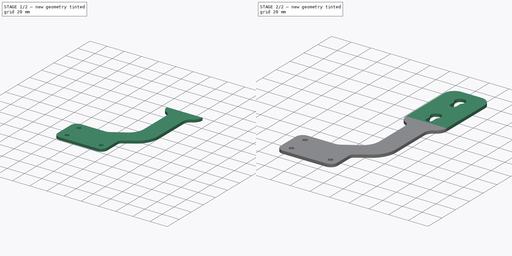
[diagram: build sequence overview — one tinted view per stage of 2, left to right]
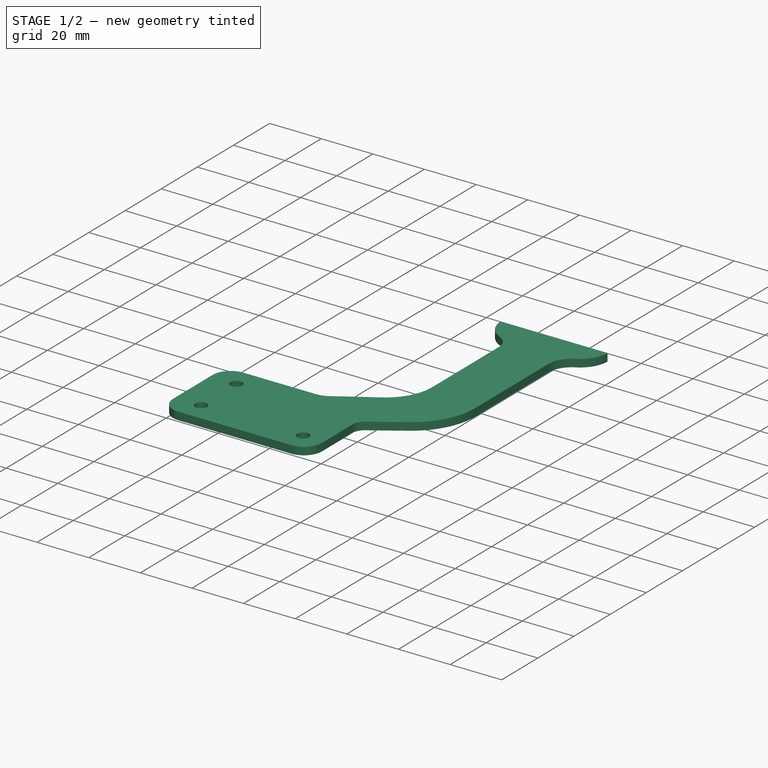
[diagram: stage 1 of 2 — iso view after this stage's code; geometry added in this stage tinted green]
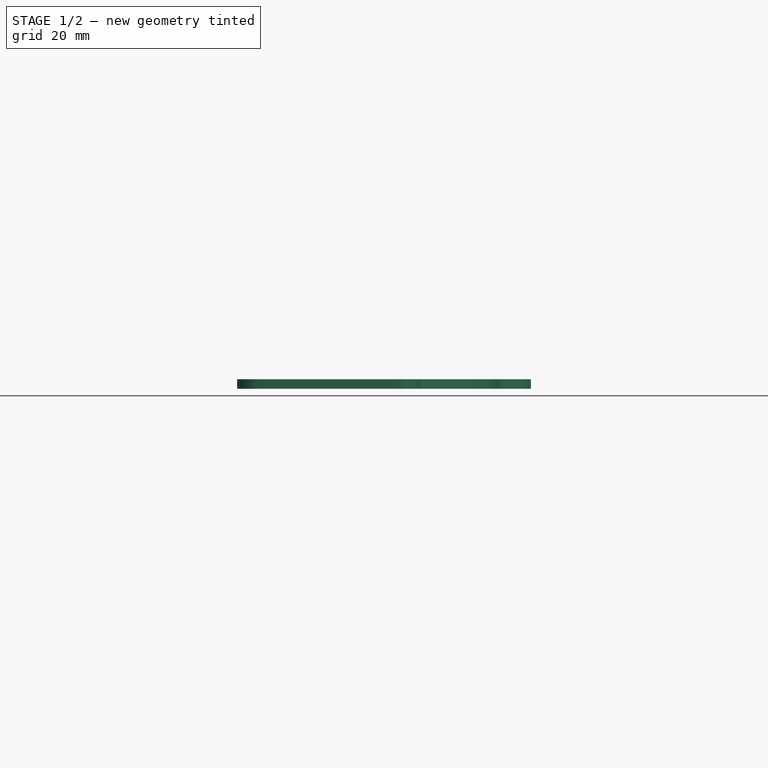
[diagram: stage 1 of 2 — front view after this stage's code; geometry added in this stage tinted green]
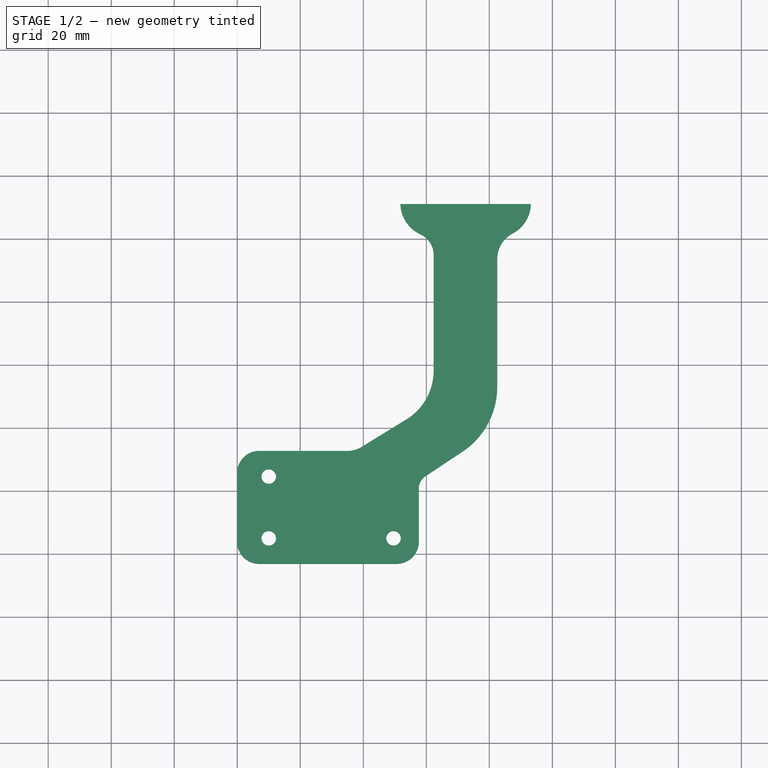
[diagram: stage 1 of 2 — top view after this stage's code; geometry added in this stage tinted green]
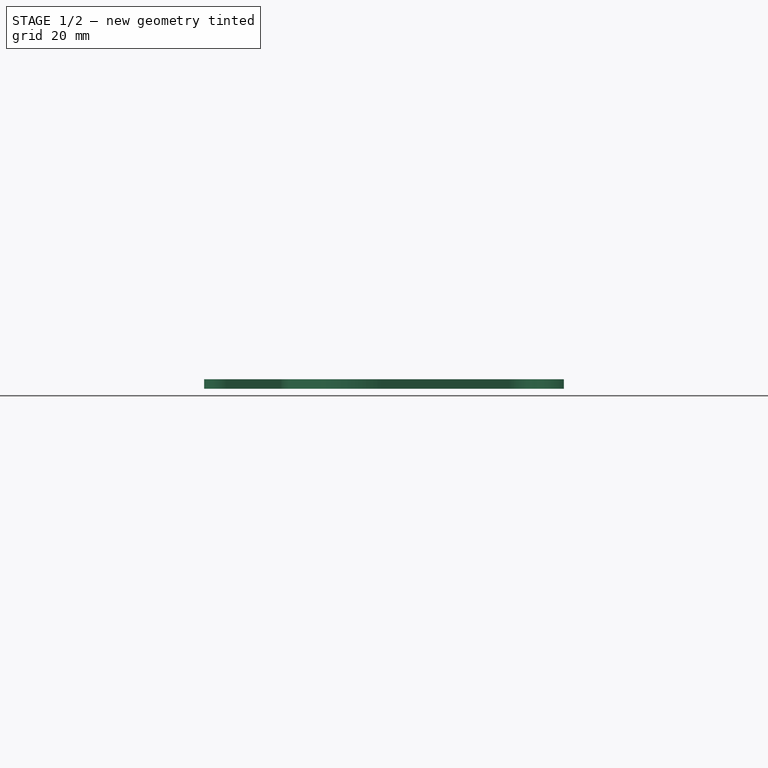
[diagram: stage 1 of 2 — right view after this stage's code; geometry added in this stage tinted green]
FCSTD DOCUMENT  (FreeCAD 0.22R37841 (Git))
Label: ScreenHolder
License: All rights reserved
LicenseURL: http://en.wikipedia.org/wiki/All_rights_reserved
objects: Sketcher::SketchObject×6, PartDesign::Pad×4, PartDesign::Body×2
note: 16 computed .brp shape members not serialized (recipe doc carries the construction recipe); baked Part::Feature solids carry a one-line shape summary decoded from their .brp

FEATURE [Sketcher::SketchObject] Sketch002
  AttachmentOffset = pos=(-50,-50,0) rot=(0,0,1;0rad)
  AttachmentSupport = -> [XY_Plane]
  FullyConstrained = false
  MapMode = 5
  Placement = pos=(-50,-50,0) rot=(0,0,1;0rad)
  sketch-geometry (13):
    g0: Circle CenterX=0 CenterY=-25.4 CenterZ=0 NormalX=0 NormalY=0 NormalZ=1 AngleXU=0 Radius=2.3
    g1: Circle CenterX=39.6 CenterY=-45 CenterZ=0 NormalX=0 NormalY=0 NormalZ=1 AngleXU=0 Radius=2.3
    g2: Circle CenterX=0 CenterY=-45 CenterZ=0 NormalX=0 NormalY=0 NormalZ=1 AngleXU=0 Radius=2.3
    g3: LineSegment StartX=-10.0542 StartY=-24.2496 StartZ=0 EndX=-10.0542 EndY=-46.0993 EndZ=0
    g4: LineSegment StartX=-3.05425 StartY=-53.0993 StartZ=0 EndX=40.6269 EndY=-53.0993 EndZ=0
    g5: LineSegment StartX=47.6269 StartY=-46.0993 StartZ=0 EndX=47.6269 EndY=-24.2496 EndZ=0
    g6: LineSegment StartX=40.6269 StartY=-17.2496 StartZ=0 EndX=-3.05425 EndY=-17.2496 EndZ=0
    g7: ArcOfCircle CenterX=-3.05424 CenterY=-24.2496 CenterZ=0 NormalX=0 NormalY=0 NormalZ=1 AngleXU=0 Radius=7 StartAngle=1.5708 EndAngle=3.14159
    g8: ArcOfCircle CenterX=-3.05424 CenterY=-46.0993 CenterZ=0 NormalX=0 NormalY=0 NormalZ=1 AngleXU=0 Radius=7 StartAngle=3.14159 EndAngle=4.71239
    g9: ArcOfCircle CenterX=40.6269 CenterY=-46.0993 CenterZ=0 NormalX=0 NormalY=0 NormalZ=1 AngleXU=0 Radius=7 StartAngle=4.71239 EndAngle=6.28319
    g10: ArcOfCircle CenterX=40.6269 CenterY=-24.2496 CenterZ=0 NormalX=0 NormalY=0 NormalZ=1 AngleXU=0 Radius=7 StartAngle=0 EndAngle=1.5708
    g11: GeomPoint X=-10.0542 Y=-17.2496 Z=0
    g12: GeomPoint X=47.6269 Y=-53.0993 Z=0
  constraints (29):
    c: Diameter(g0) = 4.6
    c: Diameter(g1) = 4.6
    c: Diameter(g2) = 4.6
    c: Vertical(g0,g2)
    c: Distance(g0,g2) = 19.6
    c: Distance(g2,g1) = 39.6
    c: Distance(g-1,g2) = 45
    c: Vertical(g2,g-1)
    c: Horizontal(g2,g1)
    c: Tangent(g3,g7) = -1.5708
    c: Tangent(g3,g8) = -1.5708
    c: Tangent(g4,g8) = -1.5708
    c: Tangent(g4,g9) = -1.5708
    c: Tangent(g5,g9) = -1.5708
    c: Tangent(g5,g10) = -1.5708
    c: Tangent(g6,g10) = -1.5708
    c: Tangent(g6,g7) = -1.5708
    c: Vertical(g3)
    c: Vertical(g5)
    c: Horizontal(g4)
    c: Horizontal(g6)
    c: Equal(g7,g8)
    c: Equal(g8,g9)
    c: Equal(g9,g10)
    c: PointOnObject(g11,g3)
    c: PointOnObject(g11,g6)
    c: PointOnObject(g12,g4)
    c: PointOnObject(g12,g5)
    c: Radius(g8) = 7
FEATURE [PartDesign::Pad] Pad001
  Direction = (0,0,1)
  Length = 3
  Length2 = 10
  Profile = -> Sketch002
  ReferenceAxis = -> Sketch002 [N_Axis]
  Suppressed = false
  Type = 0
FEATURE [Sketcher::SketchObject] Sketch003
  FullyConstrained = false
  Placement = pos=(12,13,3) rot=(0,0,1;0rad)
  sketch-geometry (28):
    g0: LineSegment StartX=-3.15 StartY=3.14702 StartZ=0 EndX=-3.15 EndY=8.81702 EndZ=0
    g1: LineSegment StartX=0 StartY=0 StartZ=0 EndX=0 EndY=3.15 EndZ=0
    g2: ArcOfCircle CenterX=0 CenterY=3.15 CenterZ=0 NormalX=0 NormalY=0 NormalZ=1 AngleXU=0 Radius=3.15 StartAngle=3.14254 EndAngle=6.28224
    g3: LineSegment StartX=0 StartY=17.7 StartZ=0 EndX=0 EndY=12.7 EndZ=0
    g4: ArcOfCircle CenterX=0 CenterY=12.7 CenterZ=0 NormalX=0 NormalY=0 NormalZ=1 AngleXU=0 Radius=5 StartAngle=5.39394 EndAngle=10.314
    g5: LineSegment StartX=3.15 StartY=8.81702 StartZ=0 EndX=3.15 EndY=3.14702 EndZ=0
    g6: LineSegment StartX=0 StartY=0 StartZ=0 EndX=0 EndY=35 EndZ=0
    g7: LineSegment StartX=0 StartY=35 StartZ=0 EndX=0 EndY=52.7 EndZ=0
    g8: LineSegment StartX=-3.15792 StartY=38.172 StartZ=0 EndX=-3.15792 EndY=43.842 EndZ=0
    g9: LineSegment StartX=0 StartY=35 StartZ=0 EndX=-0.00791605 EndY=38.172 EndZ=0
    g10: ArcOfCircle CenterX=-0.00791605 CenterY=38.172 CenterZ=0 NormalX=0 NormalY=0 NormalZ=1 AngleXU=0 Radius=3.15 StartAngle=3.14159 EndAngle=6.28319
    g11: LineSegment StartX=0 StartY=47.7 StartZ=0 EndX=-0.00791605 EndY=47.725 EndZ=0
    g12: ArcOfCircle CenterX=-0.00791605 CenterY=47.725 CenterZ=0 NormalX=0 NormalY=0 NormalZ=1 AngleXU=0 Radius=5 StartAngle=5.39394 EndAngle=10.314
    g13: LineSegment StartX=3.14208 StartY=43.842 StartZ=0 EndX=3.14208 EndY=38.172 EndZ=0
    g14: LineSegment StartX=-9.56113 StartY=-12.4546 StartZ=0 EndX=10.4854 EndY=-12.4546 EndZ=0
    g15: LineSegment StartX=21.1385 StartY=-1.80158 StartZ=0 EndX=21.1385 EndY=53.0091 EndZ=0
    g16: LineSegment StartX=10.4854 StartY=63.6621 StartZ=0 EndX=-9.56113 EndY=63.6621 EndZ=0
    g17: LineSegment StartX=-20.2142 StartY=53.0091 StartZ=0 EndX=-20.2142 EndY=-1.80158 EndZ=0
    g18: ArcOfCircle CenterX=-9.56113 CenterY=-1.80158 CenterZ=0 NormalX=0 NormalY=0 NormalZ=1 AngleXU=0 Radius=10.653 StartAngle=3.14159 EndAngle=4.71239
    g19: ArcOfCircle CenterX=10.4854 CenterY=-1.80158 CenterZ=0 NormalX=0 NormalY=0 NormalZ=1 AngleXU=0 Radius=10.653 StartAngle=4.71239 EndAngle=6.28319
    g20: ArcOfCircle CenterX=10.4854 CenterY=53.0091 CenterZ=0 NormalX=0 NormalY=0 NormalZ=1 AngleXU=0 Radius=10.653 StartAngle=1e-16 EndAngle=1.5708
    g21: ArcOfCircle CenterX=-9.56113 CenterY=53.0091 CenterZ=0 NormalX=0 NormalY=0 NormalZ=1 AngleXU=0 Radius=10.653 StartAngle=1.5708 EndAngle=3.14159
    g22: GeomPoint X=-20.2142 Y=-12.4546 Z=0
    g23: GeomPoint X=21.1385 Y=63.6621 Z=0
    g24: LineSegment StartX=-3.15 StartY=8.81702 StartZ=0 EndX=3.15 EndY=8.81702 EndZ=0
    g25: LineSegment StartX=-3.15 StartY=3.14702 StartZ=0 EndX=3.15 EndY=3.14702 EndZ=0
    g26: LineSegment StartX=-3.15792 StartY=43.842 StartZ=0 EndX=3.14208 EndY=43.842 EndZ=0
    g27: LineSegment StartX=-3.15792 StartY=38.172 StartZ=0 EndX=3.14208 EndY=38.172 EndZ=0
  constraints (65):
    c: Vertical(g0)
    c: Distance(g1) = 3.15
    c: Coincident(g1,g-1)
    c: PointOnObject(g1,g-2)
    c: Coincident(g2,g1)
    c: Distance(g3) = 5
    c: PointOnObject(g3,g-2)
    c: Diameter(g4) = 10
    c: Coincident(g4,g3)
    c: Coincident(g5,g2) = 1.5708
    c: Coincident(g0,g2)
    c: Coincident(g0,g4)
    c: Coincident(g5,g4)
    c: Distance(g6) = 35
    c: Coincident(g6,g1)
    c: PointOnObject(g6,g-2)
    c: Distance(g7) = 17.7
    c: Coincident(g7,g6)
    c: Vertical(g7)
    c: Vertical(g8)
    c: Coincident(g10,g9)
    c: Diameter(g12) = 10
    c: Coincident(g12,g11)
    c: Coincident(g13,g10)
    c: Coincident(g8,g10)
    c: Coincident(g8,g12)
    c: Coincident(g13,g12)
    c: Tangent(g14,g18) = -1.5708
    c: Tangent(g14,g19) = -1.5708
    c: Tangent(g15,g19) = -1.5708
    c: Tangent(g15,g20) = -1.5708
    c: Tangent(g16,g20) = -1.5708
    c: Tangent(g16,g21) = -1.5708
    c: Tangent(g17,g21) = -1.5708
    c: Tangent(g17,g18) = -1.5708
    c: Horizontal(g14)
    c: Horizontal(g16)
    c: Vertical(g15)
    c: Vertical(g17)
    c: Equal(g18,g19)
    c: Equal(g19,g20)
    c: Equal(g20,g21)
    c: PointOnObject(g22,g14)
    c: PointOnObject(g22,g17)
    c: PointOnObject(g23,g15)
    c: PointOnObject(g23,g16)
    c: Distance(g0) = 5.67
    c: Distance(g8) = 5.67
    c: Diameter(g2) = 6.3
    c: Equal(g5,g0)
    c: Coincident(g24,g0)
    c: Coincident(g24,g4)
    c: Horizontal(g24)
    c: Coincident(g25,g0)
    c: Coincident(g25,g2)
    c: Coincident(g26,g8)
    c: Coincident(g26,g12)
    c: Horizontal(g26)
    c: Coincident(g27,g8)
    c: Coincident(g27,g10)
    c: Horizontal(g27)
    c: Equal(g13,g8)
    c: Diameter(g10) = 6.3
    c: Coincident(g9,g6)
    c: Equal(g26,g27)
FEATURE [Sketcher::SketchObject] Sketch
  AttachmentSupport = -> [Pad001]
  FullyConstrained = false
  MapMode = 5
  Placement = pos=(0,0,3) rot=(0,0,1;0rad)
  sketch-geometry (23):
    g0: ArcOfCircle CenterX=2.72698 CenterY=11.4741 CenterZ=0 NormalX=0 NormalY=0 NormalZ=1 AngleXU=0 Radius=10.9726 StartAngle=3.17623 EndAngle=4.2799
    g1: ArcOfCircle CenterX=22.3295 CenterY=11.3737 CenterZ=0 NormalX=0 NormalY=0 NormalZ=1 AngleXU=0 Radius=10.8686 StartAngle=5.19521 EndAngle=6.25746
    g2: LineSegment StartX=2.31792 StartY=-5.03727 StartZ=0 EndX=2.31792 EndY=-41.7953 EndZ=0
    g3: LineSegment StartX=-6.32829 StartY=-57.2579 StartZ=0 EndX=-20.5893 EndY=-66.0227 EndZ=0
    g4: LineSegment StartX=22.5163 StartY=-46.8472 StartZ=0 EndX=22.5163 EndY=-6.28601 EndZ=0
    g5: ArcOfCircle CenterX=-15.8316 CenterY=-41.7953 CenterZ=0 NormalX=0 NormalY=0 NormalZ=1 AngleXU=0 Radius=18.1495 StartAngle=5.26347 EndAngle=6.28319
    g6: GeomPoint X=2.31792 Y=-51.9439 Z=0
    g7: ArcOfCircle CenterX=-4.89533 CenterY=-5.03727 CenterZ=0 NormalX=0 NormalY=0 NormalZ=1 AngleXU=0 Radius=7.21324 StartAngle=0 EndAngle=1.1383
    g8: ArcOfCircle CenterX=31.5867 CenterY=-6.28601 CenterZ=0 NormalX=0 NormalY=0 NormalZ=1 AngleXU=0 Radius=9.07034 StartAngle=2.05361 EndAngle=3.14159
    g9: LineSegment StartX=-8.23901 StartY=11.0941 StartZ=0 EndX=33.1945 EndY=11.0941 EndZ=0
    g10: LineSegment StartX=-0.26974 StartY=-75.2692 StartZ=0 EndX=11.395 EndY=-67.5471 EndZ=0
    g11: ArcOfCircle CenterX=-2.30851 CenterY=-46.8472 CenterZ=0 NormalX=0 NormalY=0 NormalZ=1 AngleXU=0 Radius=24.8248 StartAngle=5.29716 EndAngle=6.28319
    g12: GeomPoint X=22.5163 Y=-60.1847 Z=0
    g13: LineSegment StartX=-27.1997 StartY=-95.492 StartZ=0 EndX=-4.49973 EndY=-86.6561 EndZ=0
    g14: LineSegment StartX=-2.42732 StartY=-83.6255 StartZ=0 EndX=-2.42732 EndY=-79.285 EndZ=0
    g15: LineSegment StartX=-24.9319 StartY=-67.2505 StartZ=0 EndX=-30.2639 EndY=-67.2505 EndZ=0
    g16: LineSegment StartX=-30.2639 StartY=-67.2505 StartZ=0 EndX=-27.1997 EndY=-95.492 EndZ=0
    g17: ArcOfCircle CenterX=-24.9319 CenterY=-58.957 CenterZ=0 NormalX=0 NormalY=0 NormalZ=1 AngleXU=0 Radius=8.29354 StartAngle=4.71239 EndAngle=5.26347
    g18: GeomPoint X=-22.5871 Y=-67.2505 Z=0
    g19: ArcOfCircle CenterX=2.38878 CenterY=-79.285 CenterZ=0 NormalX=0 NormalY=0 NormalZ=1 AngleXU=0 Radius=4.8161 StartAngle=2.15557 EndAngle=3.14159
    g20: GeomPoint X=-2.42732 Y=-76.6975 Z=0
    g21: ArcOfCircle CenterX=-5.67938 CenterY=-83.6255 CenterZ=0 NormalX=0 NormalY=0 NormalZ=1 AngleXU=0 Radius=3.25206 StartAngle=5.08359 EndAngle=6.28319
    g22: GeomPoint X=-2.42732 Y=-85.8494 Z=0
  constraints (33):
    c: Vertical(g2)
    c: Vertical(g4)
    c: PointOnObject(g6,g2)
    c: PointOnObject(g6,g3)
    c: Tangent(g2,g5) = 1.5708
    c: Tangent(g3,g5) = 1.5708
    c: Tangent(g0,g7) = 1.5708
    c: Tangent(g2,g7) = 1.5708
    c: Tangent(g1,g8) = 1.5708
    c: Tangent(g4,g8) = 1.5708
    c: Coincident(g9,g0)
    c: Coincident(g9,g1)
    c: Horizontal(g9)
    c: PointOnObject(g12,g4)
    c: PointOnObject(g12,g10)
    c: Tangent(g4,g11) = -1.5708
    c: Tangent(g10,g11) = -1.5708
    c: Vertical(g14)
    c: Horizontal(g15)
    c: Coincident(g16,g15)
    c: Coincident(g16,g13)
    c: PointOnObject(g18,g3)
    c: PointOnObject(g18,g15)
    c: Tangent(g3,g17) = 1.5708
    c: Tangent(g15,g17) = 1.5708
    c: PointOnObject(g20,g10)
    c: PointOnObject(g20,g14)
    c: Tangent(g10,g19) = 1.5708
    c: Tangent(g14,g19) = 1.5708
    c: PointOnObject(g22,g14)
    c: PointOnObject(g22,g13)
    c: Tangent(g14,g21) = -1.5708
    c: Tangent(g13,g21) = -1.5708
FEATURE [PartDesign::Pad] Pad002
  BaseFeature = -> Pad001
  Direction = (0,0,1)
  Length = 3
  Length2 = 10
  Profile = -> Sketch
  ReferenceAxis = -> Sketch [N_Axis]
  Reversed = true
  Suppressed = false
  Type = 0
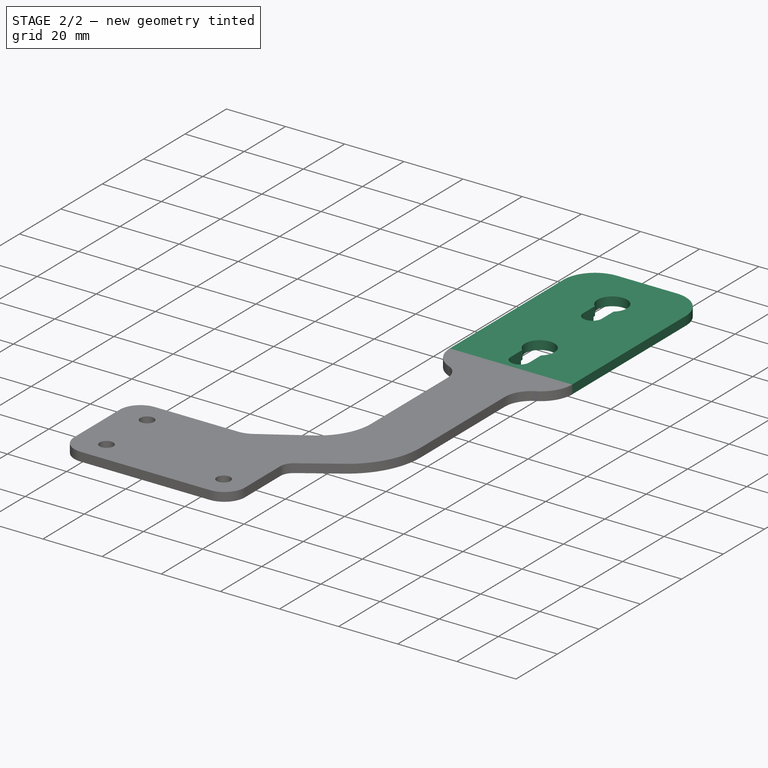
[diagram: stage 2 of 2 — iso view after this stage's code; geometry added in this stage tinted green]
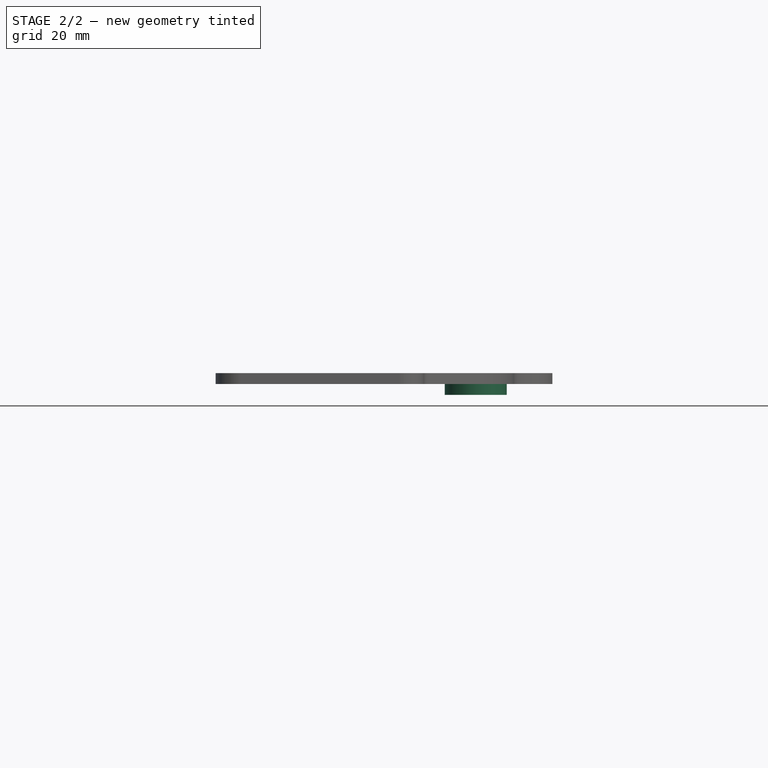
[diagram: stage 2 of 2 — front view after this stage's code; geometry added in this stage tinted green]
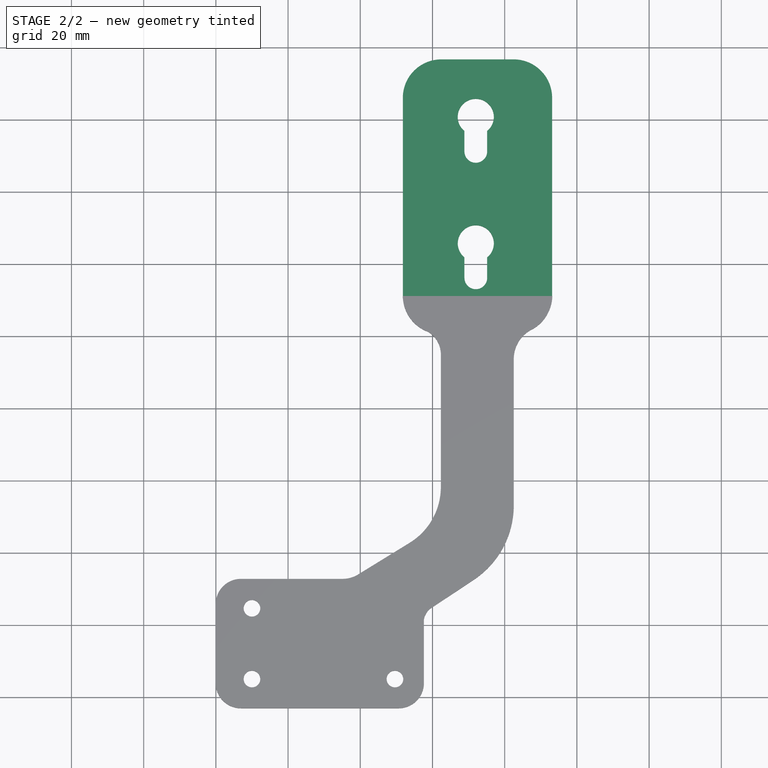
[diagram: stage 2 of 2 — top view after this stage's code; geometry added in this stage tinted green]
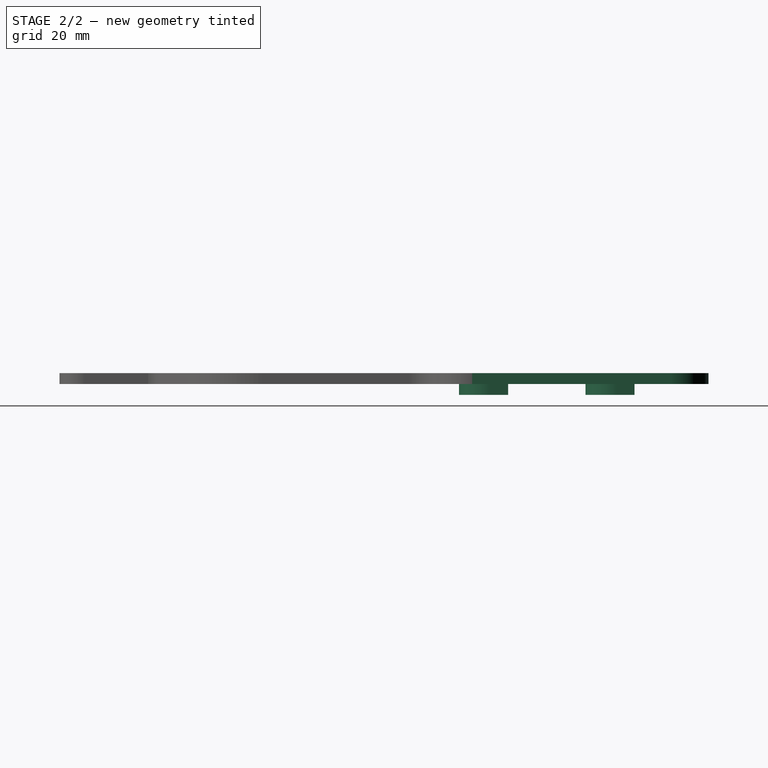
[diagram: stage 2 of 2 — right view after this stage's code; geometry added in this stage tinted green]
FEATURE [PartDesign::Pad] Pad
  BaseFeature = -> Pad002
  Direction = (0,0,1)
  Length = 3
  Length2 = 10
  Profile = -> Sketch003
  ReferenceAxis = -> Sketch003 [N_Axis]
  Reversed = true
  Suppressed = false
  Type = 0
FEATURE [Sketcher::SketchObject] Sketch006
  AttachmentSupport = -> [Pad]
  ExternalGeometry = -> [Pad]
  FullyConstrained = false
  MapMode = 5
  Placement = pos=(0,0,4e-16) rot=(1,0,0;3.14159rad)
  sketch-geometry (16):
    g0: ArcOfCircle CenterX=12 CenterY=-16.15 CenterZ=0 NormalX=0 NormalY=0 NormalZ=1 AngleXU=0 Radius=3.15 StartAngle=0 EndAngle=3.14159
    g1: LineSegment StartX=8.85 StartY=-16.15 StartZ=0 EndX=8.85 EndY=-21.15 EndZ=0
    g2: LineSegment StartX=15.15 StartY=-16.15 StartZ=0 EndX=15.15 EndY=-21.147 EndZ=0
    g3: ArcOfCircle CenterX=11.9921 CenterY=-51.172 CenterZ=0 NormalX=0 NormalY=0 NormalZ=1 AngleXU=0 Radius=3.15 StartAngle=0 EndAngle=3.14159
    g4: LineSegment StartX=15.1421 StartY=-51.172 StartZ=0 EndX=15.1421 EndY=-56.172 EndZ=0
    g5: LineSegment StartX=8.84208 StartY=-51.172 StartZ=0 EndX=8.84208 EndY=-56.172 EndZ=0
    g6: LineSegment StartX=20.5721 StartY=-51.3015 StartZ=0 EndX=20.5721 EndY=-56.172 EndZ=0
    g7: LineSegment StartX=3.41305 StartY=-51.3549 StartZ=0 EndX=3.41208 EndY=-56.172 EndZ=0
    g8: ArcOfCircle CenterX=11.9921 CenterY=-51.172 CenterZ=0 NormalX=0 NormalY=0 NormalZ=1 AngleXU=0 Radius=8.58098 StartAngle=6.2681 EndAngle=9.44608
    g9: LineSegment StartX=8.84208 StartY=-56.172 StartZ=0 EndX=3.41208 EndY=-56.172 EndZ=0
    g10: LineSegment StartX=15.1421 StartY=-56.172 StartZ=0 EndX=20.5721 EndY=-56.172 EndZ=0
    g11: ArcOfCircle CenterX=12 CenterY=-16.15 CenterZ=0 NormalX=0 NormalY=0 NormalZ=1 AngleXU=0 Radius=8.58 StartAngle=6.27889 EndAngle=9.42909
    g12: LineSegment StartX=15.15 StartY=-21.147 StartZ=0 EndX=20.5799 EndY=-21.147 EndZ=0
    g13: LineSegment StartX=8.85 StartY=-21.15 StartZ=0 EndX=3.42008 EndY=-21.15 EndZ=0
    g14: LineSegment StartX=3.42008 StartY=-16.187 StartZ=0 EndX=3.42008 EndY=-21.15 EndZ=0
    g15: LineSegment StartX=20.5799 StartY=-16.1868 StartZ=0 EndX=20.5799 EndY=-21.147 EndZ=0
  constraints (35):
    c: Coincident(g0,g-3)
    c: Distance(g2,g-3) = 5
    c: Tangent(g1,g0) = -1.5708
    c: Vertical(g1)
    c: Tangent(g2,g0) = 1.5708
    c: Vertical(g2)
    c: Coincident(g3,g-4)
    c: Distance(g4) = 5
    c: Coincident(g4,g-4)
    c: Vertical(g4)
    c: Distance(g5) = 5
    c: Coincident(g5,g-4)
    c: Vertical(g5)
    c: Coincident(g3,g5)
    c: Vertical(g6)
    c: Coincident(g8,g6)
    c: Distance(g9) = 5.43
    c: Coincident(g9,g5)
    c: Horizontal(g9)
    c: Distance(g10) = 5.43
    c: Coincident(g10,g4)
    c: Horizontal(g10)
    c: Coincident(g7,g9)
    c: Coincident(g6,g10)
    c: Coincident(g7,g8)
    c: Diameter(g11) = 17.16
    c: Coincident(g11,g0)
    c: Horizontal(g12)
    c: Coincident(g12,g2)
    c: Vertical(g14)
    c: Coincident(g11,g14)
    c: Coincident(g13,g14)
    c: Coincident(g15,g11)
    c: Coincident(g15,g12)
    c: Vertical(g15)
FEATURE [PartDesign::Pad] Pad005
  BaseFeature = -> Pad
  Direction = (0,0,-1)
  Length = 3
  Length2 = 10
  Profile = -> Sketch006
  ReferenceAxis = -> Sketch006 [N_Axis]
  Suppressed = false
  Type = 0
FEATURE [PartDesign::Body] Body
  AllowCompound = false
  Group = -> [Sketch002,Pad001,Sketch003,Sketch,Pad002,Pad,Sketch006,Pad005]
  Origin = -> Origin
  Tip = -> Pad005
FEATURE [PartDesign::Body] Body001
  AllowCompound = false
  Origin = -> Origin001
FEATURE [Sketcher::SketchObject] Sketch007
  AttachmentOffset = pos=(-50,-50,0) rot=(0,0,1;0rad)
  AttachmentSupport = -> [XY_Plane]
  FullyConstrained = false
  MapMode = 5
  Placement = pos=(-50,-50,0) rot=(0,0,1;0rad)
  sketch-geometry (6):
    g0: Circle CenterX=0 CenterY=19.6 CenterZ=0 NormalX=0 NormalY=0 NormalZ=1 AngleXU=0 Radius=2.3
    g1: Circle CenterX=39.6 CenterY=0 CenterZ=0 NormalX=0 NormalY=0 NormalZ=1 AngleXU=0 Radius=2.3
    g2: Circle CenterX=0 CenterY=0 CenterZ=0 NormalX=0 NormalY=0 NormalZ=1 AngleXU=0 Radius=2.3
    g3: Circle CenterX=84.7614 CenterY=102.042 CenterZ=0 NormalX=0 NormalY=0 NormalZ=1 AngleXU=0 Radius=5
    g4: Circle CenterX=84.7614 CenterY=75.5406 CenterZ=0 NormalX=0 NormalY=0 NormalZ=1 AngleXU=0 Radius=5
    g5: ArcOfCircle CenterX=84.7614 CenterY=92.5124 CenterZ=0 NormalX=0 NormalY=0 NormalZ=1 AngleXU=0 Radius=3.15 StartAngle=3.14159 EndAngle=6.28319
  constraints (14):
    c: Diameter(g0) = 4.6
    c: Diameter(g1) = 4.6
    c: Diameter(g2) = 4.6
    c: Vertical(g0,g2)
    c: Horizontal(g2,g1)
    c: Coincident(g2,g-1)
    c: DistanceY(g-1,g0) = 19.6
    c: DistanceX(g-2,g1) = 39.6
    c: Vertical(g4,g3)
    c: Diameter(g3) = 10
    c: Diameter(g4) = 10
    c: Diameter(g5) = 6.3
    c: Vertical(g5,g3)
    c: Distance(g3,g5) = 9.53
FEATURE [Sketcher::SketchObject] Sketch008
  FullyConstrained = true
  Placement = pos=(12,13,3) rot=(0,0,1;0rad)
  sketch-geometry (6):
    g0: LineSegment StartX=-3.15192 StartY=3.15002 StartZ=0 EndX=-3.15192 EndY=8.82002 EndZ=0
    g1: ArcOfCircle CenterX=-0.00192089 CenterY=3.15 CenterZ=0 NormalX=0 NormalY=0 NormalZ=1 AngleXU=0 Radius=3.15 StartAngle=3.14159 EndAngle=6.28319
    g2: ArcOfCircle CenterX=-0.00192089 CenterY=12.703 CenterZ=0 NormalX=0 NormalY=0 NormalZ=1 AngleXU=0 Radius=5 StartAngle=5.39394 EndAngle=10.314
    g3: LineSegment StartX=3.14808 StartY=8.82002 StartZ=0 EndX=3.14808 EndY=3.15002 EndZ=0
    g4: LineSegment StartX=-3.15192 StartY=8.82002 StartZ=0 EndX=3.14808 EndY=8.82002 EndZ=0
    g5: LineSegment StartX=-3.15192 StartY=3.15002 StartZ=0 EndX=3.14808 EndY=3.15002 EndZ=0
  constraints (18):
    c: Vertical(g0)
    c: Diameter(g2) = 10
    c: Coincident(g3,g1)
    c: Coincident(g0,g1)
    c: Coincident(g0,g2)
    c: Coincident(g3,g2)
    c: Distance(g0) = 5.67
    c: Coincident(g4,g0)
    c: Coincident(g4,g2)
    c: Horizontal(g4)
    c: Coincident(g5,g0)
    c: Coincident(g5,g1)
    c: Horizontal(g5)
    c: Equal(g3,g0)
    c: Equal(g4,g5)
    c: Distance(g2,g0) = 6.3
    c: PointOnObject(g-1,g1)
    c: Diameter(g1) = 6.3
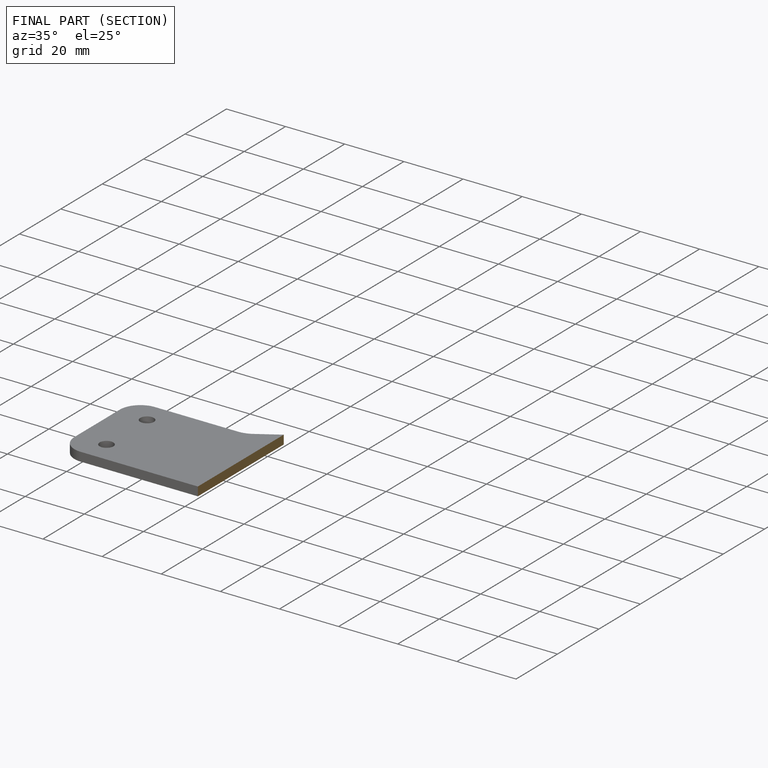
[diagram: finished part — half-section view (interior)]
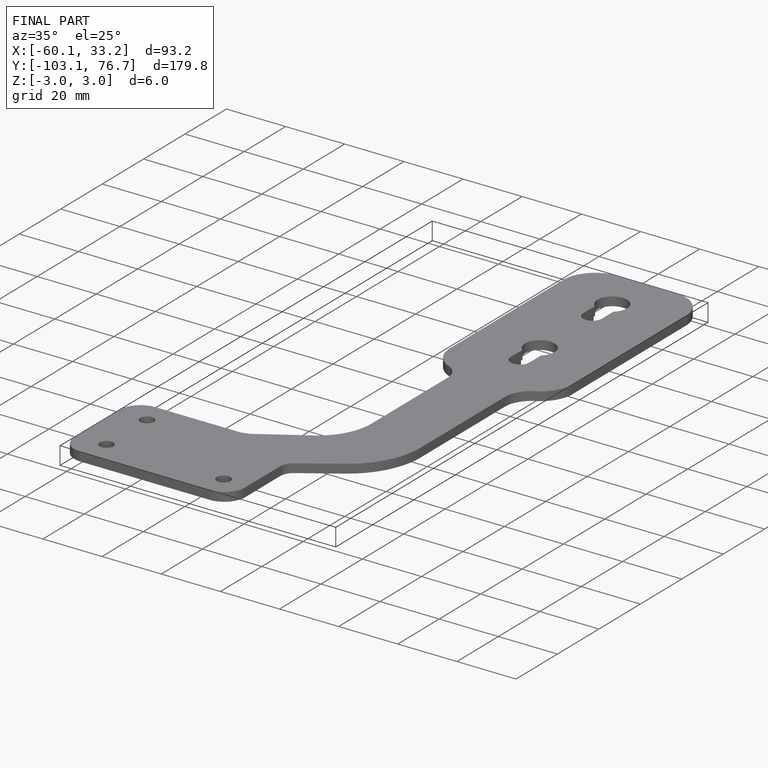
[diagram: finished part — iso view with bounding-box wireframe]
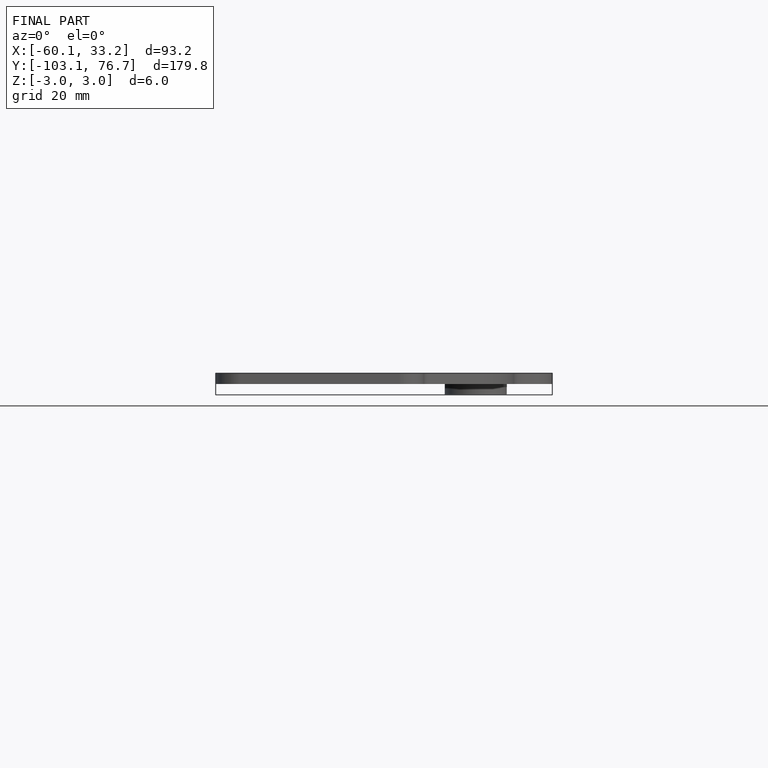
[diagram: finished part — front view with bounding-box wireframe]
